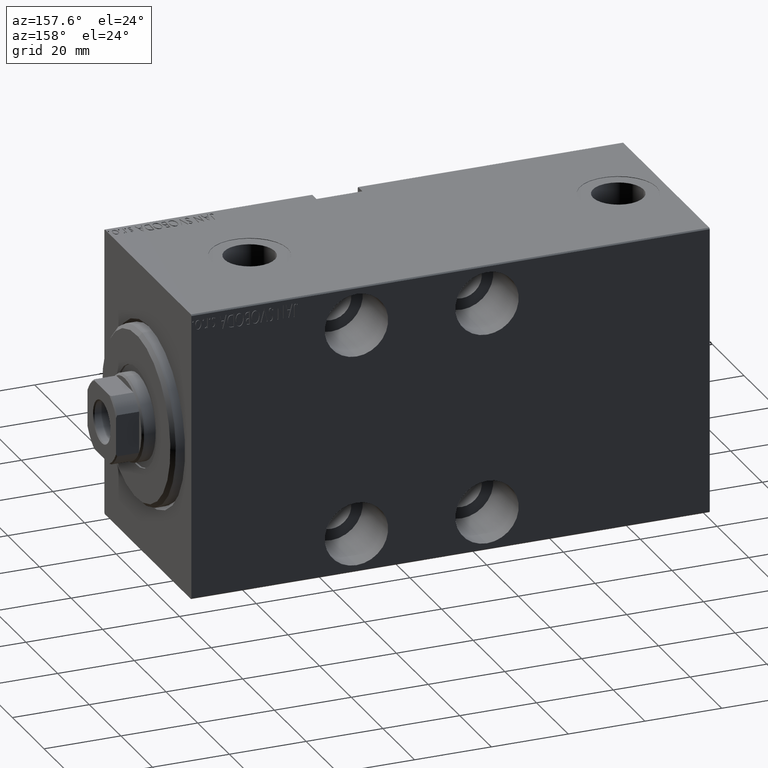
[diagram: clean part render]
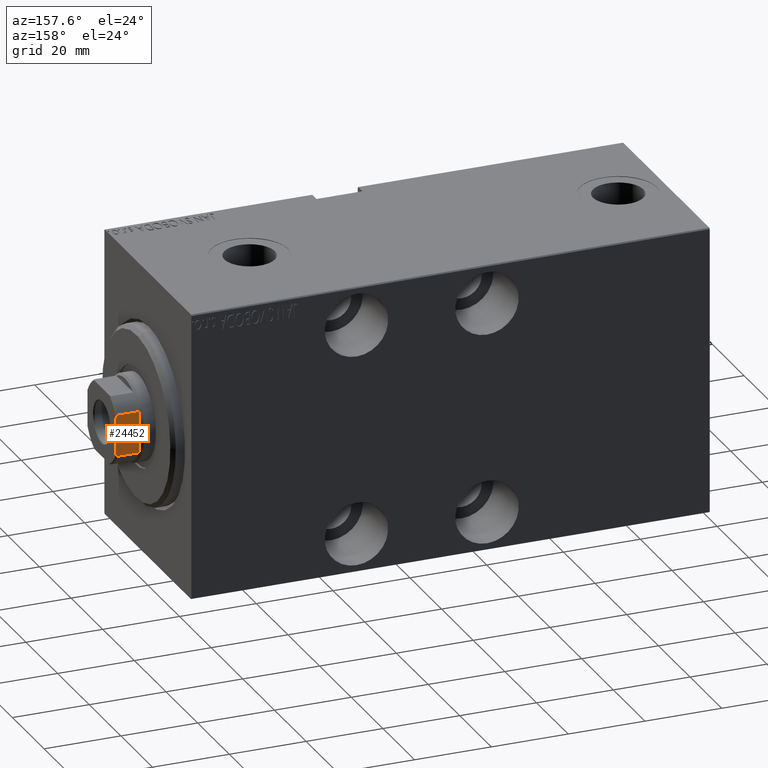
[diagram: same view with one face highlighted and labeled with its STEP entity id]
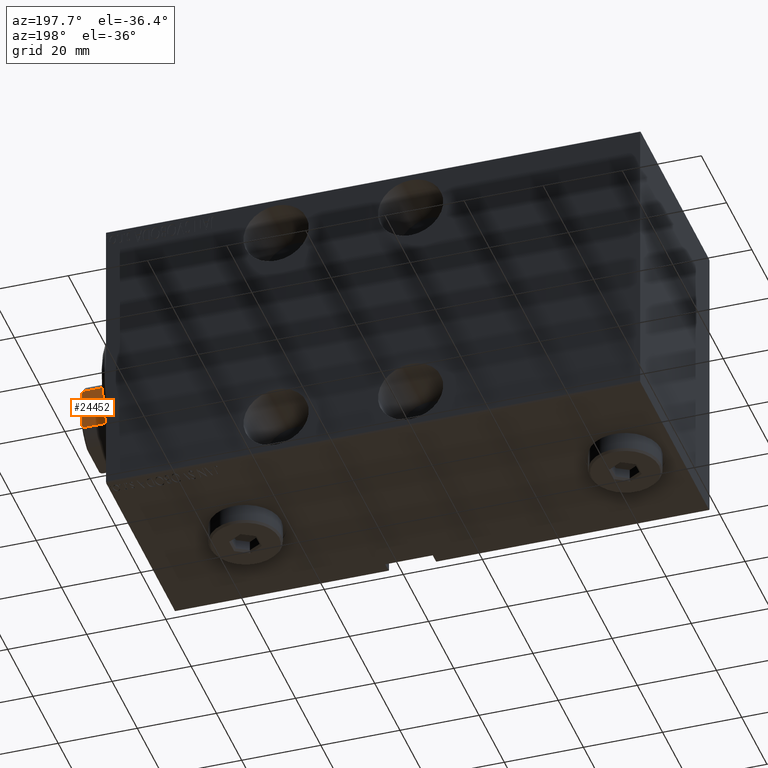
[diagram: same view with one face highlighted and labeled with its STEP entity id]
A machine part, auxiliary view. The second image highlights one B-rep face of the part: STEP entity #24452.
A second angle (auxiliary view) of the same face is appended — the face is thin or edge-on in the first view.
In plain terms, the highlighted planar face has unit normal (0, -1, 0).
Its self-contained STEP definition (entity closure, byte-faithful):
#432 = VECTOR ( 'NONE', #21512, 1000.000000000000000 ) ;
#777 = ORIENTED_EDGE ( 'NONE', *, *, #33271, .F. ) ;
#1154 = CARTESIAN_POINT ( 'NONE',  ( -5.408326913195988794, 8.999999999999998224, 136.6999999999999886 ) ) ;
#1826 = CARTESIAN_POINT ( 'NONE',  ( 4.799999999999924327, 8.999999999999998224, 137.0000000000000000 ) ) ;
#1973 = CARTESIAN_POINT ( 'NONE',  ( -4.799999999999961631, 8.999999999999998224, 137.0000000000000000 ) ) ;
#2213 = ORIENTED_EDGE ( 'NONE', *, *, #3203, .F. ) ;
#3160 = CARTESIAN_POINT ( 'NONE',  ( -5.207299490555461041, 8.999999999999998224, 136.8035449543006621 ) ) ;
#3203 = EDGE_CURVE ( 'NONE', #42219, #7881, #4907, .T. ) ;
#3295 = CARTESIAN_POINT ( 'NONE',  ( -5.408326913195988794, 8.999999999999998224, -0.001000000000001000089 ) ) ;
#3363 = EDGE_CURVE ( 'NONE', #15662, #20603, #37554, .T. ) ;
#4907 = LINE ( 'NONE', #32693, #432 ) ;
#6884 = LINE ( 'NONE', #9372, #31086 ) ;
#7881 = VERTEX_POINT ( 'NONE', #1973 ) ;
#8346 = B_SPLINE_CURVE_WITH_KNOTS ( 'NONE', 3,
 ( #1826, #29614, #11925, #25578 ),
 .UNSPECIFIED., .F., .F.,
 ( 4, 4 ),
 ( 8.673617379884034509E-19, 0.0006782784334760202016 ),
 .UNSPECIFIED. ) ;
#8785 = CARTESIAN_POINT ( 'NONE',  ( 4.799999999999924327, 8.999999999999998224, 137.0000000000000000 ) ) ;
#9372 = CARTESIAN_POINT ( 'NONE',  ( 5.408326913195989682, 8.999999999999998224, -0.001000000000001000089 ) ) ;
#10720 = ORIENTED_EDGE ( 'NONE', *, *, #23746, .T. ) ;
#11600 = DIRECTION ( 'NONE',  ( 0.000000000000000000, -1.000000000000000000, 0.000000000000000000 ) ) ;
#11642 = EDGE_CURVE ( 'NONE', #12845, #7881, #15723, .T. ) ;
#11925 = CARTESIAN_POINT ( 'NONE',  ( 5.207299490555446830, 8.999999999999998224, 136.8035449543006621 ) ) ;
#12845 = VERTEX_POINT ( 'NONE', #1154 ) ;
#13433 = EDGE_CURVE ( 'NONE', #20603, #12845, #17216, .T. ) ;
#15175 = DIRECTION ( 'NONE',  ( 0.000000000000000000, -0.000000000000000000, -1.000000000000000000 ) ) ;
#15662 = VERTEX_POINT ( 'NONE', #25259 ) ;
#15723 = B_SPLINE_CURVE_WITH_KNOTS ( 'NONE', 3,
 ( #33874, #3160, #16851, #44187 ),
 .UNSPECIFIED., .F., .F.,
 ( 4, 4 ),
 ( 0.000000000000000000, 0.0006782784334759729304 ),
 .UNSPECIFIED. ) ;
#16507 = CARTESIAN_POINT ( 'NONE',  ( -9.000000000000000000, 8.999999999999998224, 131.0000000000000000 ) ) ;
#16851 = CARTESIAN_POINT ( 'NONE',  ( -5.004607318780281311, 8.999999999999998224, 136.9037142029269489 ) ) ;
#17216 = LINE ( 'NONE', #3295, #17836 ) ;
#17758 = ORIENTED_EDGE ( 'NONE', *, *, #3363, .T. ) ;
#17836 = VECTOR ( 'NONE', #30860, 1000.000000000000000 ) ;
#19853 = DIRECTION ( 'NONE',  ( -1.000000000000000000, -0.000000000000000000, -0.000000000000000000 ) ) ;
#20603 = VERTEX_POINT ( 'NONE', #41548 ) ;
#21512 = DIRECTION ( 'NONE',  ( -1.000000000000000000, -0.000000000000000000, -0.000000000000000000 ) ) ;
#21682 = PLANE ( 'NONE',  #35302 ) ;
#23746 = EDGE_CURVE ( 'NONE', #42219, #24232, #8346, .T. ) ;
#24232 = VERTEX_POINT ( 'NONE', #36735 ) ;
#24452 = ADVANCED_FACE ( 'NONE', ( #32647 ), #21682, .F. ) ;
#25259 = CARTESIAN_POINT ( 'NONE',  ( 5.408326913195989682, 8.999999999999998224, 130.9999999999999716 ) ) ;
#25578 = CARTESIAN_POINT ( 'NONE',  ( 5.408326913195989682, 8.999999999999998224, 136.6999999999999602 ) ) ;
#26212 = VECTOR ( 'NONE', #19853, 1000.000000000000000 ) ;
#29614 = CARTESIAN_POINT ( 'NONE',  ( 5.004607318780252001, 8.999999999999998224, 136.9037142029269205 ) ) ;
#30860 = DIRECTION ( 'NONE',  ( -0.000000000000000000, -0.000000000000000000, 1.000000000000000000 ) ) ;
#31086 = VECTOR ( 'NONE', #40086, 1000.000000000000000 ) ;
#32035 = EDGE_LOOP ( 'NONE', ( #2213, #10720, #777, #17758, #34286, #41163 ) ) ;
#32647 = FACE_OUTER_BOUND ( 'NONE', #32035, .T. ) ;
#32693 = CARTESIAN_POINT ( 'NONE',  ( -9.000000000000000000, 8.999999999999998224, 137.0000000000000000 ) ) ;
#33271 = EDGE_CURVE ( 'NONE', #15662, #24232, #6884, .T. ) ;
#33874 = CARTESIAN_POINT ( 'NONE',  ( -5.408326913195988794, 8.999999999999998224, 136.6999999999999886 ) ) ;
#34286 = ORIENTED_EDGE ( 'NONE', *, *, #13433, .T. ) ;
#35302 = AXIS2_PLACEMENT_3D ( 'NONE', #35361, #11600, #15175 ) ;
#35361 = CARTESIAN_POINT ( 'NONE',  ( -9.000000000000000000, 8.999999999999998224, 137.0000000000000000 ) ) ;
#36735 = CARTESIAN_POINT ( 'NONE',  ( 5.408326913195989682, 8.999999999999998224, 136.6999999999999602 ) ) ;
#37554 = LINE ( 'NONE', #16507, #26212 ) ;
#40086 = DIRECTION ( 'NONE',  ( -0.000000000000000000, -0.000000000000000000, 1.000000000000000000 ) ) ;
#41163 = ORIENTED_EDGE ( 'NONE', *, *, #11642, .T. ) ;
#41548 = CARTESIAN_POINT ( 'NONE',  ( -5.408326913195987018, 8.999999999999998224, 130.9999999999999716 ) ) ;
#42219 = VERTEX_POINT ( 'NONE', #8785 ) ;
#44187 = CARTESIAN_POINT ( 'NONE',  ( -4.799999999999961631, 8.999999999999998224, 137.0000000000000000 ) ) ;